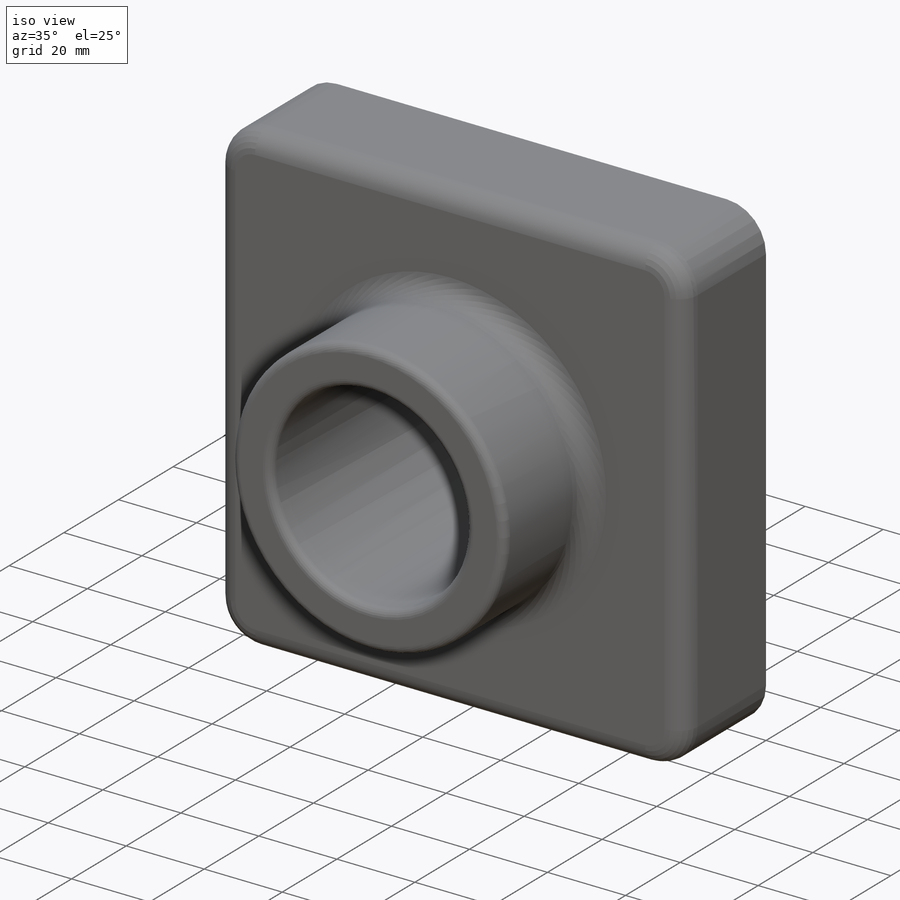
[diagram: iso view]
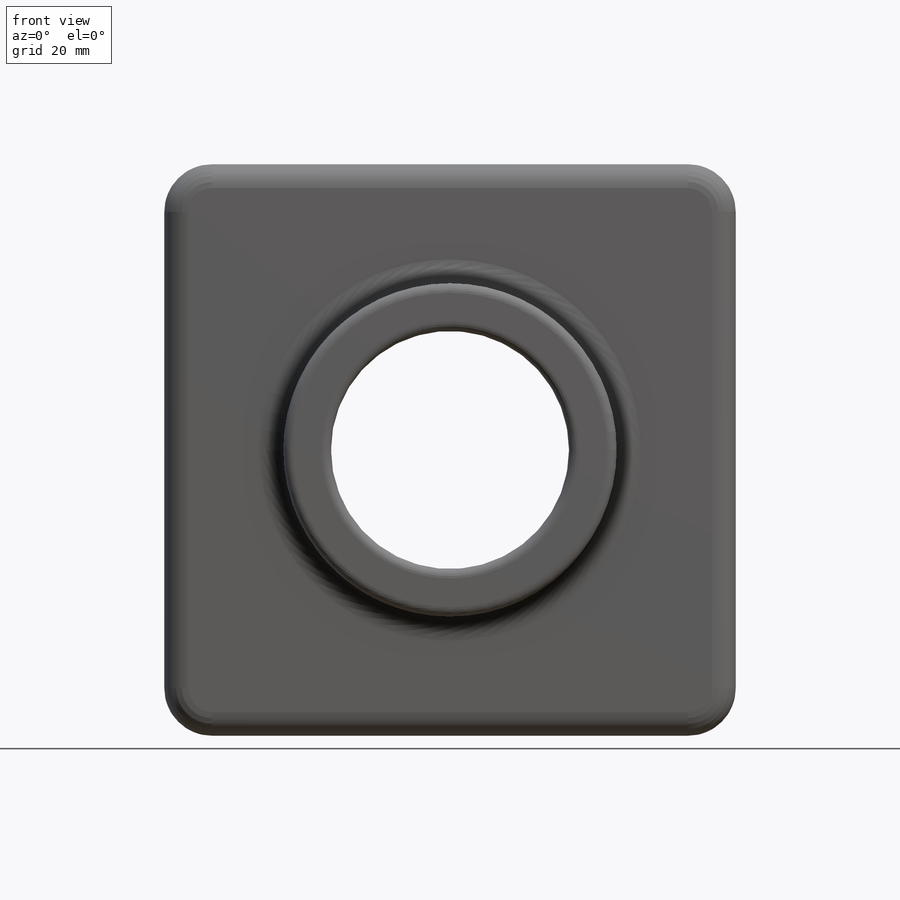
[diagram: front view]
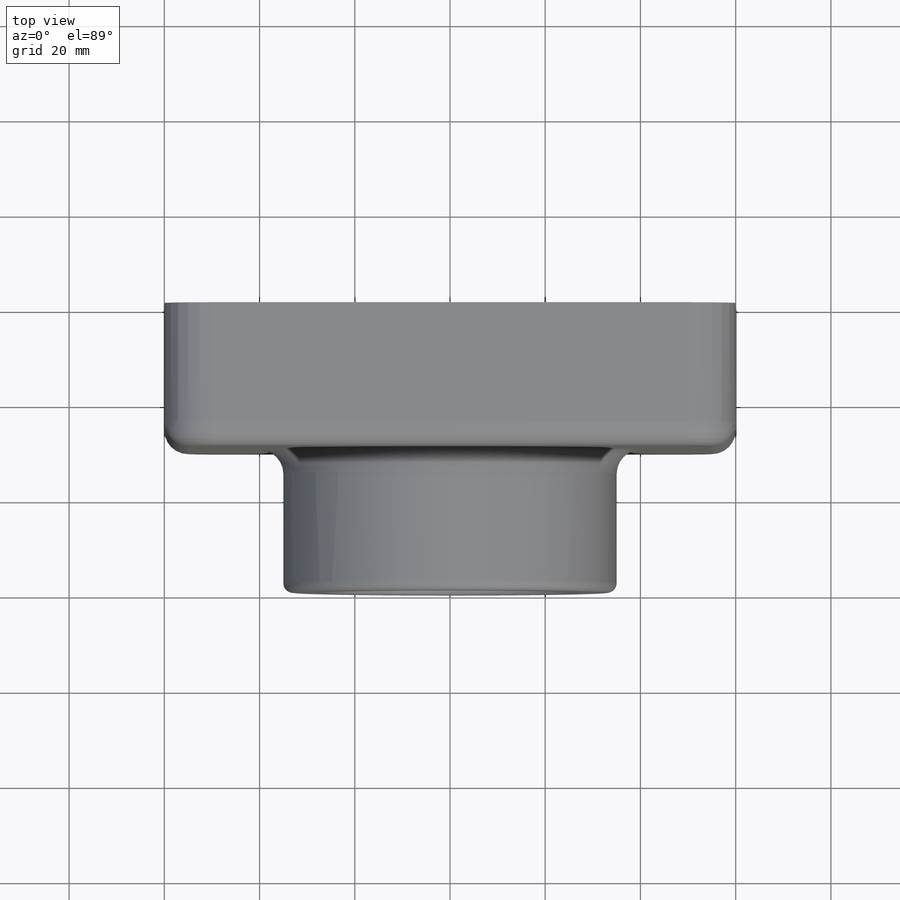
[diagram: top view]
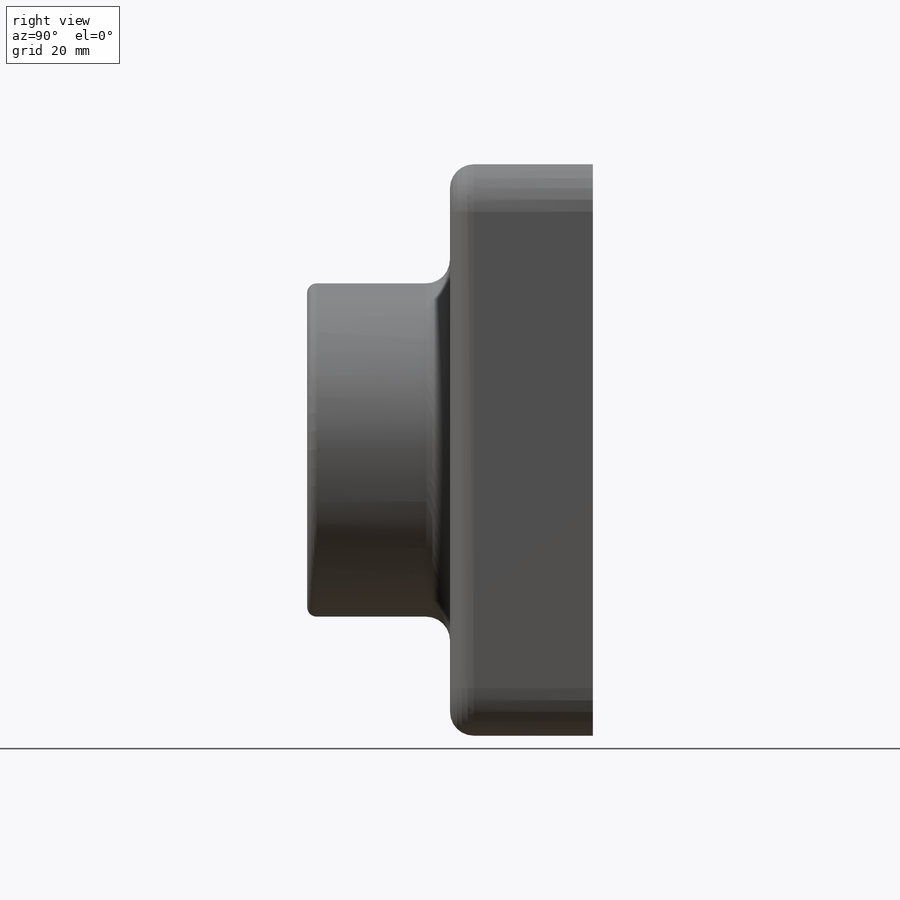
[diagram: right view]
SOLIDWORKS PART (.sldprt)
format: sldprt  version: not decoded by parser v0  size: 281,600 bytes
history: native  units: mm
features: sketch x3, fillet x3, extrude x2, material x1, cut_extrude x1, shell x1 (+16 scaffold rows collapsed)
feature tree (27):
  scaffold x16  (default folders/planes/origin — collapsed)
  material  "Material <sin especificar>"
  sketch  "Croquis1"  dims[D1=120.0mm D2=120.0mm]
  extrude  "Saliente-Extruir1"  Depth=30mm
  sketch  "Croquis3"  dims[D3=70.0mm D1=60.0mm D2=60.0mm]
  extrude  "Saliente-Extruir2"  Depth=30mm
  sketch  "Croquis4"  dims[D1=60.0mm D2=60.0mm]
  cut_extrude  "Cortar-Extruir1"  [1 undecoded]
  fillet  "Redondeo4"  Radius=2mm
  fillet  "Redondeo6"  Radius=10mm
  fillet  "Redondeo8"  Radius=5mm
  shell  "Vaciado1"  Thickness=2mm
decode coverage: 9 of 10 modeling features carry decoded parameters
note: 1 parameter value undecoded
note: suppression state not decoded; provenance and decode notes live in map.json
